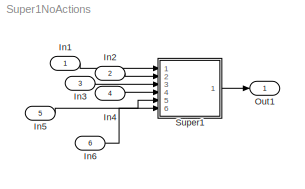
MODEL Super1NoActions
KIND model
BLOCK [Inport] In1
  IconDisplay = Port number
  OutDataTypeStr = boolean
  SID = 8
BLOCK [Inport] In2
  IconDisplay = Port number
  OutDataTypeStr = boolean
  Port = 2
  SID = 9
BLOCK [Inport] In3
  IconDisplay = Port number
  OutDataTypeStr = boolean
  Port = 3
  SID = 10
BLOCK [Inport] In4
  IconDisplay = Port number
  OutDataTypeStr = boolean
  Port = 4
  SID = 11
BLOCK [Inport] In5
  IconDisplay = Port number
  OutDataTypeStr = boolean
  Port = 5
  SID = 12
BLOCK [Inport] In6
  IconDisplay = Port number
  OutDataTypeStr = boolean
  Port = 6
  SID = 13
BLOCK [Outport] Out1
  IconDisplay = Port number
  SID = 7
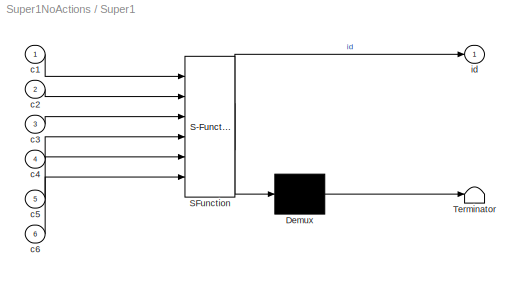
BLOCK [SubSystem] Super1
  ErrorFcn = Stateflow.Translate.translate
  PermitHierarchicalResolution = ExplicitOnly
  Ports = [6, 1]
  RequestExecContextInheritance = off
  SFBlockType = Chart
  SID = 1
  TreatAsAtomicUnit = on
  Variant = off
BLOCK [Demux] Super1/ Demux 
  Outputs = 1
  Ports = [1, 1]
  SID = 1::14
BLOCK [S-Function] Super1/ SFunction 
  EnableBusSupport = on
  FunctionName = sf_sfun
  PortCounts = [6 2]
  Ports = [6, 2]
  SFcnIsStateOwnerBlock = off
  SFunctionDeploymentMode = off
  SID = 1::13
  Tag = Stateflow S-Function Super1NoActions 1
BLOCK [Terminator] Super1/ Terminator 
  SID = 1::15
BLOCK [Inport] Super1/c1
  IconDisplay = Port number
  SID = 1::16
BLOCK [Inport] Super1/c2
  IconDisplay = Port number
  Port = 2
  SID = 1::17
BLOCK [Inport] Super1/c3
  IconDisplay = Port number
  Port = 3
  SID = 1::18
BLOCK [Inport] Super1/c4
  IconDisplay = Port number
  Port = 4
  SID = 1::19
BLOCK [Inport] Super1/c5
  IconDisplay = Port number
  Port = 5
  SID = 1::20
BLOCK [Inport] Super1/c6
  IconDisplay = Port number
  Port = 6
  SID = 1::21
BLOCK [Outport] Super1/id
  IconDisplay = Port number
  SID = 1::22
LINE In1:1 -> Super1:1
LINE In2:1 -> Super1:2
LINE In3:1 -> Super1:3
LINE In4:1 -> Super1:4
LINE In5:1 -> Super1:5
LINE In6:1 -> Super1:6
LINE Super1/ Demux :1 -> Super1/ Terminator :1
LINE Super1/ SFunction :1 -> Super1/ Demux :1
LINE Super1/ SFunction :2 -> Super1/id:1
LINE Super1/c1:1 -> Super1/ SFunction :1
LINE Super1/c2:1 -> Super1/ SFunction :2
LINE Super1/c3:1 -> Super1/ SFunction :3
LINE Super1/c4:1 -> Super1/ SFunction :4
LINE Super1/c5:1 -> Super1/ SFunction :5
LINE Super1/c6:1 -> Super1/ SFunction :6
LINE Super1:1 -> Out1:1
CHART Super1 states=6 transitions=13
  STATE_LABEL 'A\\nen : id = 1;'
  STATE_LABEL 'B\\nen : id = 5;'
  STATE_LABEL 'C'
  STATE_LABEL 'C1\\nen : id = 3;'
  STATE_LABEL 'C2\\nen : id = 4;'
  STATE_LABEL 'D\\nen : id = 2;'
